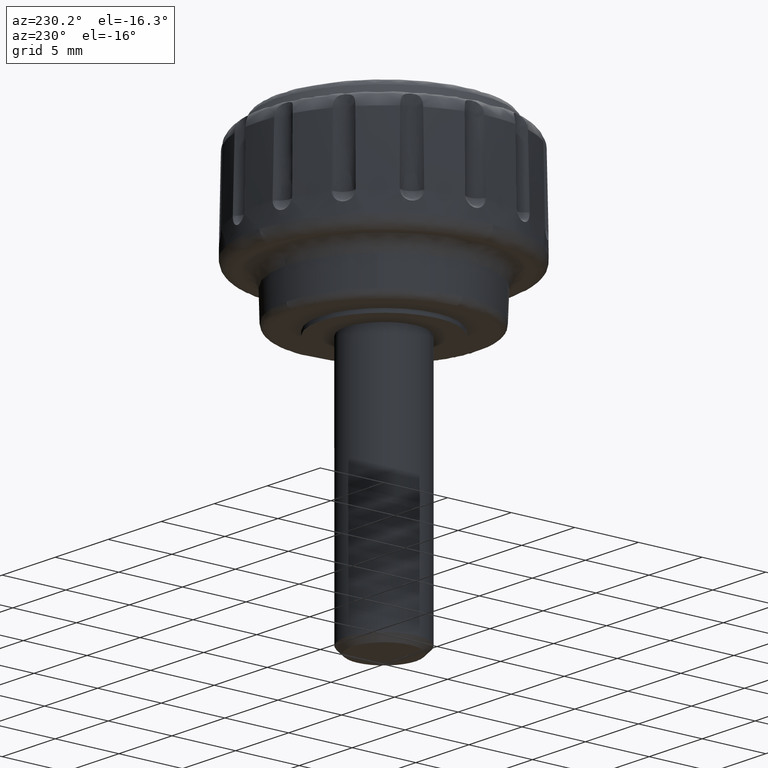
[diagram: clean part render]
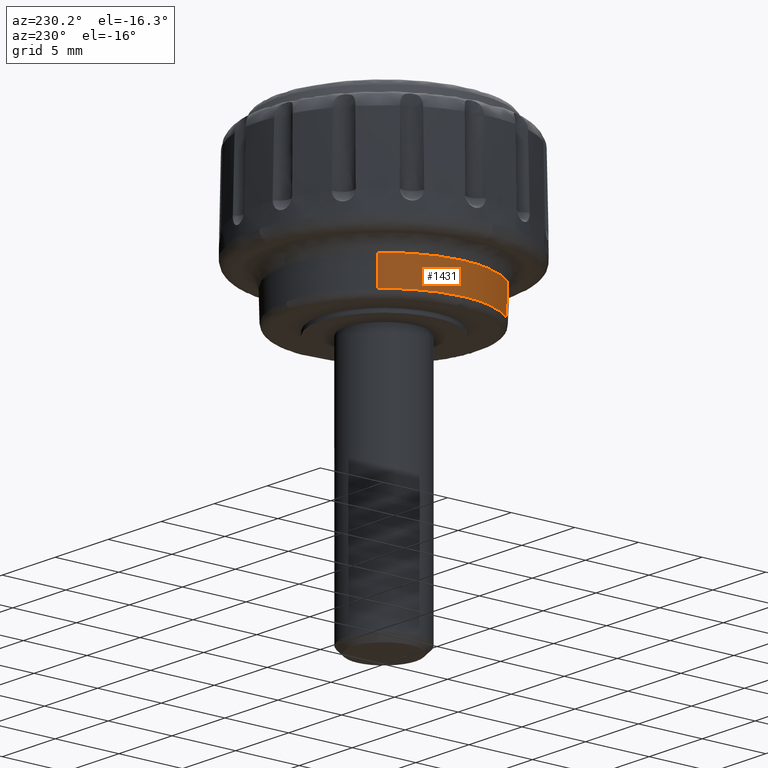
[diagram: same view with one face highlighted and labeled with its STEP entity id]
A machine part, auxiliary view. The second image highlights one B-rep face of the part: STEP entity #1431.
In plain terms, the highlighted face is a freeform B-spline surface patch.
Its self-contained STEP definition (entity closure, byte-faithful):
#1234=CARTESIAN_POINT('',(-5.725356476537243,-4.954144351750448,3.025614784948988));
#1235=VERTEX_POINT('',#1234);
#1248=CARTESIAN_POINT('',(-5.660397517681404,-4.897738196087092,0.786206423066687));
#1249=VERTEX_POINT('',#1248);
#1250=CARTESIAN_POINT('',(-5.660397517681404,-4.897738196087092,0.786206423066687));
#1251=CARTESIAN_POINT('',(-5.725356476537243,-4.954144351750448,3.025614784948988));
#1252=QUASI_UNIFORM_CURVE('',1,(#1250,#1251),.UNSPECIFIED.,.F.,.U.);
#1253=EDGE_CURVE('',#1249,#1235,#1252,.T.);
#1291=CARTESIAN_POINT('',(-5.538897443147103,5.075464406172724,0.786913678385492));
#1292=VERTEX_POINT('',#1291);
#1305=CARTESIAN_POINT('',(-5.582127014590133,5.115077010144933,3.026185994203193));
#1306=VERTEX_POINT('',#1305);
#1307=CARTESIAN_POINT('',(-5.538897443147103,5.075464406172724,0.786913678385492));
#1308=CARTESIAN_POINT('',(-5.582127014590133,5.115077010144933,3.026185994203193));
#1309=QUASI_UNIFORM_CURVE('',1,(#1307,#1308),.UNSPECIFIED.,.F.,.U.);
#1310=EDGE_CURVE('',#1292,#1306,#1309,.T.);
#1364=CARTESIAN_POINT('',(-5.537902824277773,5.074552996564850,0.730916579139339));
#1365=CARTESIAN_POINT('',(-10.056750153125270,0.143096491559401,0.730916579139339));
#1366=CARTESIAN_POINT('',(-5.680042234813037,-4.914933978888135,0.730916579139340));
#1367=CARTESIAN_POINT('',(-5.583322243027707,5.116172225871167,3.083585426800838));
#1368=CARTESIAN_POINT('',(-10.139231150167292,0.144270105412518,3.083585426800838));
#1369=CARTESIAN_POINT('',(-5.726627417862712,-4.955244083922257,3.083585426800837));
#1377=(BOUNDED_SURFACE()B_SPLINE_SURFACE(2,1,((#1364,#1367),(#1365,#1368),(#1366,#1369)),.UNSPECIFIED.,.F.,.F.,.U.)B_SPLINE_SURFACE_WITH_KNOTS((3,3),(2,2),(0.0,11.530743740508690),(0.0,2.353475258124572),.UNSPECIFIED.)GEOMETRIC_REPRESENTATION_ITEM()RATIONAL_B_SPLINE_SURFACE(((1.0,1.0),(0.730538238691624,0.730538238691624),(0.956886118190660,0.956886118190660)))REPRESENTATION_ITEM('')SURFACE());
#1378=CARTESIAN_POINT('',(-7.570194705215956,0.095134890280148,3.026203259784704));
#1379=VERTEX_POINT('',#1378);
#1380=CARTESIAN_POINT('',(-5.725356476537243,-4.954144351750448,3.025614784948988));
#1381=CARTESIAN_POINT('',(-5.959453624564097,-4.683572817243104,3.025646531784064));
#1382=CARTESIAN_POINT('',(-6.440794065574257,-4.040252247258717,3.025721895821165));
#1383=CARTESIAN_POINT('',(-7.001897784516887,-2.971815449405096,3.025846686732643));
#1384=CARTESIAN_POINT('',(-7.372492481107216,-1.839305432326114,3.025978608659985));
#1385=CARTESIAN_POINT('',(-7.546023715990552,-0.821176598848085,3.026096955649798));
#1386=CARTESIAN_POINT('',(-7.573814569244298,-0.191070801587616,3.026170073744661));
#1387=CARTESIAN_POINT('',(-7.570194705215956,0.095134890280148,3.026203259784704));
#1388=B_SPLINE_CURVE_WITH_KNOTS('',3,(#1380,#1381,#1382,#1383,#1384,#1385,#1386,#1387),.UNSPECIFIED.,.F.,.U.,(4,1,1,1,1,4),(3.517175E-009,1.073359210892898,2.404331418686077,3.606490348903018,4.636918809304537,5.495606102387660),.UNSPECIFIED.);
#1389=EDGE_CURVE('',#1235,#1379,#1388,.T.);
#1390=ORIENTED_EDGE('',*,*,#1389,.T.);
#1391=CARTESIAN_POINT('',(-7.570194705215956,0.095134890280148,3.026203259784704));
#1392=CARTESIAN_POINT('',(-7.565201618552352,0.497663596264191,3.026202197347559));
#1393=CARTESIAN_POINT('',(-7.504041594050589,1.158285764159944,3.026200343246625));
#1394=CARTESIAN_POINT('',(-7.284106635492226,2.126952465913790,3.026197352962102));
#1395=CARTESIAN_POINT('',(-6.947744042065556,3.077768436930453,3.026194166542051));
#1396=CARTESIAN_POINT('',(-6.392915809735321,4.122527483781741,3.026190279026863));
#1397=CARTESIAN_POINT('',(-5.873520343300601,4.797081008031673,3.026187432947418));
#1398=CARTESIAN_POINT('',(-5.582127014590133,5.115077010144933,3.026185994203193));
#1399=B_SPLINE_CURVE_WITH_KNOTS('',3,(#1391,#1392,#1393,#1394,#1395,#1396,#1397,#1398),.UNSPECIFIED.,.F.,.U.,(4,1,1,1,1,4),(4.062998E-009,1.207673590410443,1.984038411829490,2.976049433336254,4.226859895652758,5.520796366372672),.UNSPECIFIED.);
#1400=EDGE_CURVE('',#1379,#1306,#1399,.T.);
#1401=ORIENTED_EDGE('',*,*,#1400,.T.);
#1402=ORIENTED_EDGE('',*,*,#1310,.F.);
#1403=CARTESIAN_POINT('',(-7.511568992721471,0.094398139429074,0.786931475086033));
#1404=VERTEX_POINT('',#1403);
#1405=CARTESIAN_POINT('',(-7.511568992721471,0.094398139429074,0.786931475086033));
#1406=CARTESIAN_POINT('',(-7.504744978996389,0.650731791461872,0.786929953567218));
#1407=CARTESIAN_POINT('',(-7.393085685968406,1.548094510397484,0.786927279590413));
#1408=CARTESIAN_POINT('',(-7.021848480898588,2.735435272302568,0.786923253523801));
#1409=CARTESIAN_POINT('',(-6.480097146932529,3.886988342534636,0.786918952053003));
#1410=CARTESIAN_POINT('',(-5.934126860513806,4.644288075655561,0.786915709055452));
#1411=CARTESIAN_POINT('',(-5.538897443147103,5.075464406172724,0.786913678385492));
#1412=B_SPLINE_CURVE_WITH_KNOTS('',3,(#1405,#1406,#1407,#1408,#1409,#1410,#1411),.UNSPECIFIED.,.F.,.U.,(4,1,1,1,4),(4.295416E-009,1.669092220207418,2.696229282001222,3.723355829258451,5.478041762745859),.UNSPECIFIED.);
#1413=EDGE_CURVE('',#1404,#1292,#1412,.T.);
#1414=ORIENTED_EDGE('',*,*,#1413,.F.);
#1415=CARTESIAN_POINT('',(-5.660397517681404,-4.897738196087092,0.786206423066687));
#1416=CARTESIAN_POINT('',(-7.521913397040570,-2.748895000176803,0.786571594453514));
#1417=CARTESIAN_POINT('',(-7.511568992721471,0.094398139429074,0.786931475086033));
#1425=(BOUNDED_CURVE()B_SPLINE_CURVE(2,(#1415,#1416,#1417),.UNSPECIFIED.,.F.,.U.)B_SPLINE_CURVE_WITH_KNOTS((3,3),(0.884645234347080,1.0),.UNSPECIFIED.)CURVE()GEOMETRIC_REPRESENTATION_ITEM()RATIONAL_B_SPLINE_CURVE((0.854425327103729,0.864853485529779,1.0))REPRESENTATION_ITEM(''));
#1426=EDGE_CURVE('',#1249,#1404,#1425,.T.);
#1427=ORIENTED_EDGE('',*,*,#1426,.F.);
#1428=ORIENTED_EDGE('',*,*,#1253,.T.);
#1429=EDGE_LOOP('',(#1390,#1401,#1402,#1414,#1427,#1428));
#1430=FACE_OUTER_BOUND('',#1429,.T.);
#1431=ADVANCED_FACE('',(#1430),#1377,.T.);